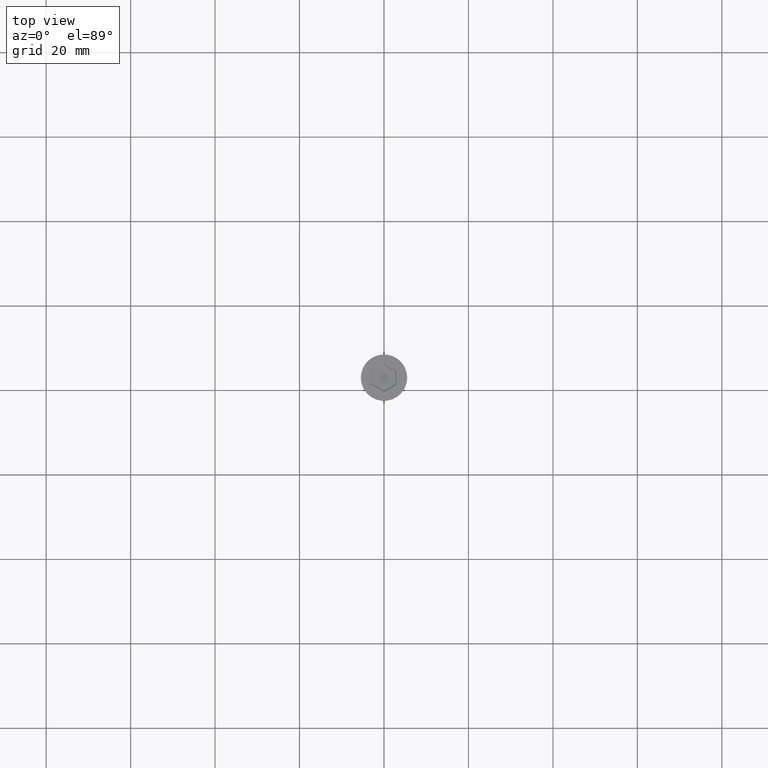
[diagram: clean part render]
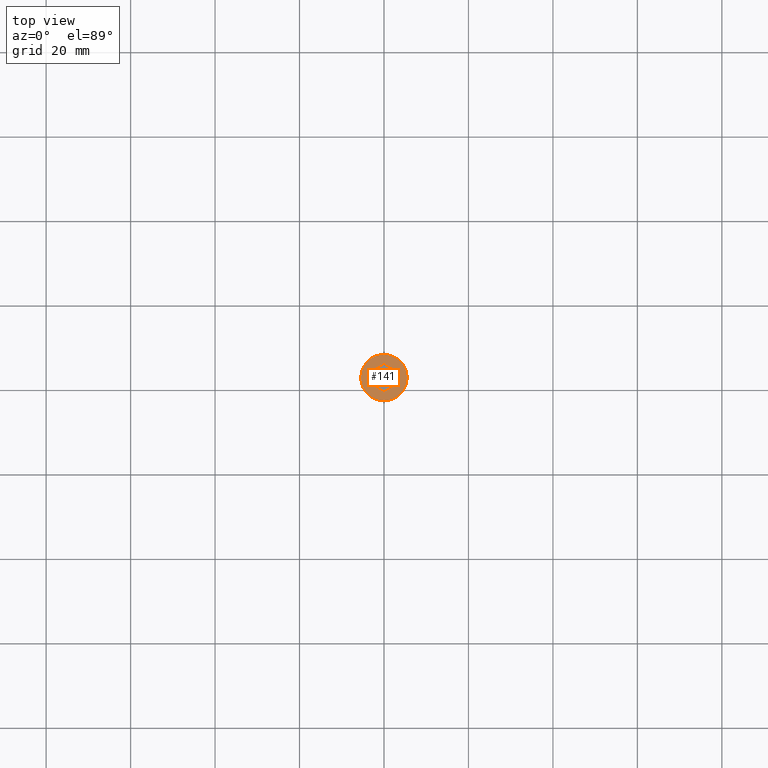
[diagram: same view with one face highlighted and labeled with its STEP entity id]
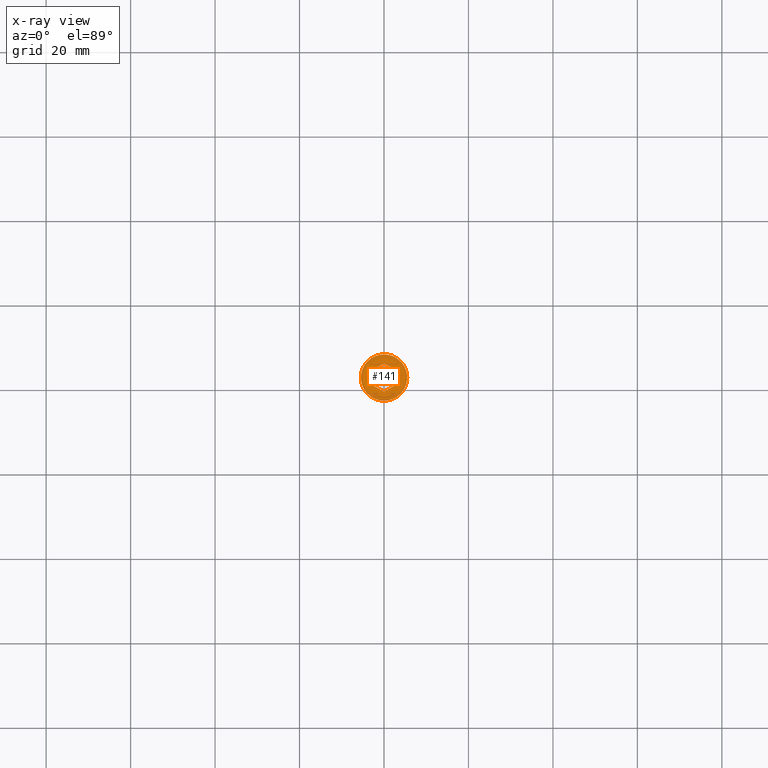
[diagram: x-ray of the same camera — body ghosted, the highlighted face saturated]
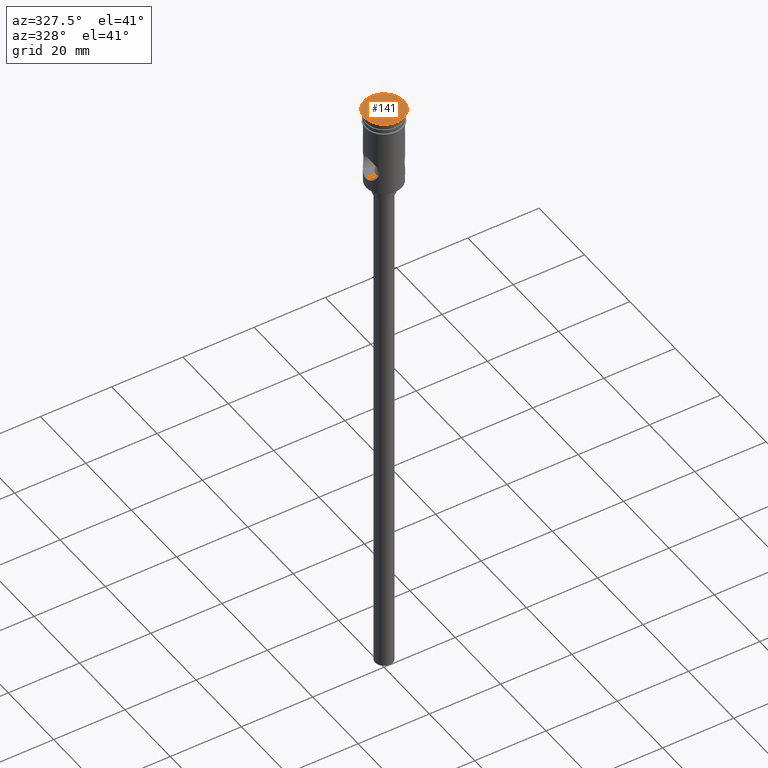
[diagram: same view with one face highlighted and labeled with its STEP entity id]
A machine part, top view. The second image highlights one B-rep face of the part: STEP entity #141.
The next image is the same camera in x-ray: the body ghosted, the highlighted face saturated — about 0% of this face is hidden behind the body in this view.
A second angle (auxiliary view) of the same face is appended — the face is thin or edge-on in the first view.
In plain terms, the highlighted planar face has unit normal (0, -0, 1).
Its self-contained STEP definition (entity closure, byte-faithful):
#2 = ORIENTED_EDGE ( 'NONE', *, *, #573, .T. ) ;
#42 = VERTEX_POINT ( 'NONE', #122 ) ;
#52 = ORIENTED_EDGE ( 'NONE', *, *, #1394, .T. ) ;
#54 = EDGE_CURVE ( 'NONE', #42, #721, #1224, .T. ) ;
#70 = ORIENTED_EDGE ( 'NONE', *, *, #723, .T. ) ;
#75 = DIRECTION ( 'NONE',  ( 1.000000000000000000, 0.000000000000000000, 0.000000000000000000 ) ) ;
#83 = VECTOR ( 'NONE', #1200, 1000.000000000000000 ) ;
#85 = CARTESIAN_POINT ( 'NONE',  ( -2.799999999999997158, -1.732050807568871864, 0.000000000000000000 ) ) ;
#90 = CARTESIAN_POINT ( 'NONE',  ( -0.09999999999999764633, 3.290896534380861382, 0.000000000000000000 ) ) ;
#94 = DIRECTION ( 'NONE',  ( -0.000000000000000000, -0.000000000000000000, 1.000000000000000000 ) ) ;
#122 = CARTESIAN_POINT ( 'NONE',  ( -4.552601062339046804E-16, -3.348631561299821868, 0.000000000000000000 ) ) ;
#141 = ADVANCED_FACE ( 'NONE', ( #235, #682 ), #587, .T. ) ;
#159 = DIRECTION ( 'NONE',  ( -0.8660254037844387076, -0.4999999999999998890, 0.000000000000000000 ) ) ;
#168 = EDGE_LOOP ( 'NONE', ( #2, #70 ) ) ;
#177 = CIRCLE ( 'NONE', #1207, 5.500000000000000000 ) ;
#194 = DIRECTION ( 'NONE',  ( -0.000000000000000000, -0.000000000000000000, 1.000000000000000000 ) ) ;
#213 = DIRECTION ( 'NONE',  ( 1.000000000000000000, 0.000000000000000000, 0.000000000000000000 ) ) ;
#231 = DIRECTION ( 'NONE',  ( -1.391032035867740017E-16, -1.000000000000000000, 0.000000000000000000 ) ) ;
#235 = FACE_BOUND ( 'NONE', #336, .T. ) ;
#274 = CIRCLE ( 'NONE', #1332, 5.500000000000000000 ) ;
#286 = LINE ( 'NONE', #90, #83 ) ;
#302 = EDGE_CURVE ( 'NONE', #987, #1208, #286, .T. ) ;
#336 = EDGE_LOOP ( 'NONE', ( #743, #52, #705, #1151, #720, #1193 ) ) ;
#357 = DIRECTION ( 'NONE',  ( 1.000000000000000000, 0.000000000000000000, 0.000000000000000000 ) ) ;
#364 = DIRECTION ( 'NONE',  ( 0.8660254037844387076, -0.4999999999999998335, 0.000000000000000000 ) ) ;
#373 = LINE ( 'NONE', #1027, #622 ) ;
#467 = VECTOR ( 'NONE', #662, 1000.000000000000000 ) ;
#480 = DIRECTION ( 'NONE',  ( 0.000000000000000000, -0.000000000000000000, 1.000000000000000000 ) ) ;
#492 = LINE ( 'NONE', #1146, #956 ) ;
#564 = AXIS2_PLACEMENT_3D ( 'NONE', #1162, #480, #357 ) ;
#573 = EDGE_CURVE ( 'NONE', #980, #638, #177, .T. ) ;
#587 = PLANE ( 'NONE',  #564 ) ;
#589 = CARTESIAN_POINT ( 'NONE',  ( -5.500000000000000000, 6.735557395310442023E-16, 0.000000000000000000 ) ) ;
#622 = VECTOR ( 'NONE', #364, 1000.000000000000000 ) ;
#638 = VERTEX_POINT ( 'NONE', #589 ) ;
#658 = CARTESIAN_POINT ( 'NONE',  ( 0.000000000000000000, 0.000000000000000000, 0.000000000000000000 ) ) ;
#662 = DIRECTION ( 'NONE',  ( 0.000000000000000000, 1.000000000000000000, 0.000000000000000000 ) ) ;
#682 = FACE_OUTER_BOUND ( 'NONE', #168, .T. ) ;
#705 = ORIENTED_EDGE ( 'NONE', *, *, #302, .T. ) ;
#720 = ORIENTED_EDGE ( 'NONE', *, *, #853, .T. ) ;
#721 = VERTEX_POINT ( 'NONE', #1452 ) ;
#723 = EDGE_CURVE ( 'NONE', #638, #980, #274, .T. ) ;
#736 = VECTOR ( 'NONE', #1349, 1000.000000000000114 ) ;
#743 = ORIENTED_EDGE ( 'NONE', *, *, #54, .T. ) ;
#834 = EDGE_CURVE ( 'NONE', #1122, #42, #1154, .T. ) ;
#853 = EDGE_CURVE ( 'NONE', #1373, #1122, #492, .T. ) ;
#875 = CARTESIAN_POINT ( 'NONE',  ( 5.500000000000000000, 0.000000000000000000, 0.000000000000000000 ) ) ;
#882 = CARTESIAN_POINT ( 'NONE',  ( 2.899999999999992362, -1.674315780649911822, 0.000000000000000000 ) ) ;
#901 = CARTESIAN_POINT ( 'NONE',  ( 2.899999999999992806, 1.674315780649911378, 0.000000000000000000 ) ) ;
#956 = VECTOR ( 'NONE', #231, 1000.000000000000000 ) ;
#980 = VERTEX_POINT ( 'NONE', #875 ) ;
#987 = VERTEX_POINT ( 'NONE', #1341 ) ;
#990 = CARTESIAN_POINT ( 'NONE',  ( 0.000000000000000000, 0.000000000000000000, 0.000000000000000000 ) ) ;
#1027 = CARTESIAN_POINT ( 'NONE',  ( 2.799999999999996270, 1.732050807568872086, 0.000000000000000000 ) ) ;
#1122 = VERTEX_POINT ( 'NONE', #882 ) ;
#1146 = CARTESIAN_POINT ( 'NONE',  ( 2.899999999999992362, -1.558845726811989296, 0.000000000000000000 ) ) ;
#1151 = ORIENTED_EDGE ( 'NONE', *, *, #1226, .T. ) ;
#1154 = LINE ( 'NONE', #1265, #1263 ) ;
#1162 = CARTESIAN_POINT ( 'NONE',  ( 0.000000000000000000, 0.000000000000000000, 0.000000000000000000 ) ) ;
#1193 = ORIENTED_EDGE ( 'NONE', *, *, #834, .T. ) ;
#1200 = DIRECTION ( 'NONE',  ( 0.8660254037844387076, 0.4999999999999998890, 0.000000000000000000 ) ) ;
#1207 = AXIS2_PLACEMENT_3D ( 'NONE', #658, #94, #75 ) ;
#1208 = VERTEX_POINT ( 'NONE', #1284 ) ;
#1224 = LINE ( 'NONE', #85, #736 ) ;
#1226 = EDGE_CURVE ( 'NONE', #1208, #1373, #373, .T. ) ;
#1245 = LINE ( 'NONE', #1259, #467 ) ;
#1259 = CARTESIAN_POINT ( 'NONE',  ( -2.899999999999994138, 1.558845726811988852, 0.000000000000000000 ) ) ;
#1263 = VECTOR ( 'NONE', #159, 1000.000000000000000 ) ;
#1265 = CARTESIAN_POINT ( 'NONE',  ( 0.09999999999999654998, -3.290896534380861382, 0.000000000000000000 ) ) ;
#1284 = CARTESIAN_POINT ( 'NONE',  ( -9.683804684061200344E-16, 3.348631561299821868, 0.000000000000000000 ) ) ;
#1332 = AXIS2_PLACEMENT_3D ( 'NONE', #990, #194, #213 ) ;
#1341 = CARTESIAN_POINT ( 'NONE',  ( -2.899999999999994138, 1.674315780649911600, 0.000000000000000000 ) ) ;
#1349 = DIRECTION ( 'NONE',  ( -0.8660254037844385966, 0.5000000000000001110, 0.000000000000000000 ) ) ;
#1373 = VERTEX_POINT ( 'NONE', #901 ) ;
#1394 = EDGE_CURVE ( 'NONE', #721, #987, #1245, .T. ) ;
#1452 = CARTESIAN_POINT ( 'NONE',  ( -2.899999999999994138, -1.674315780649910934, 0.000000000000000000 ) ) ;